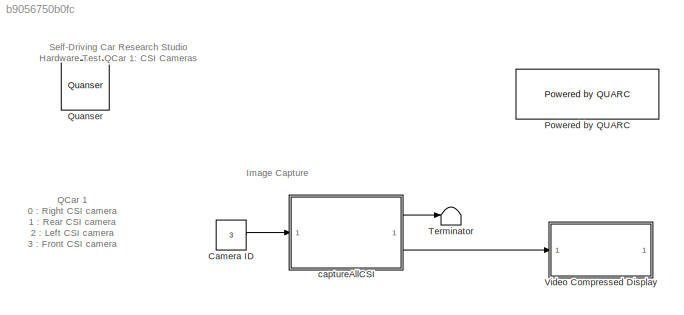
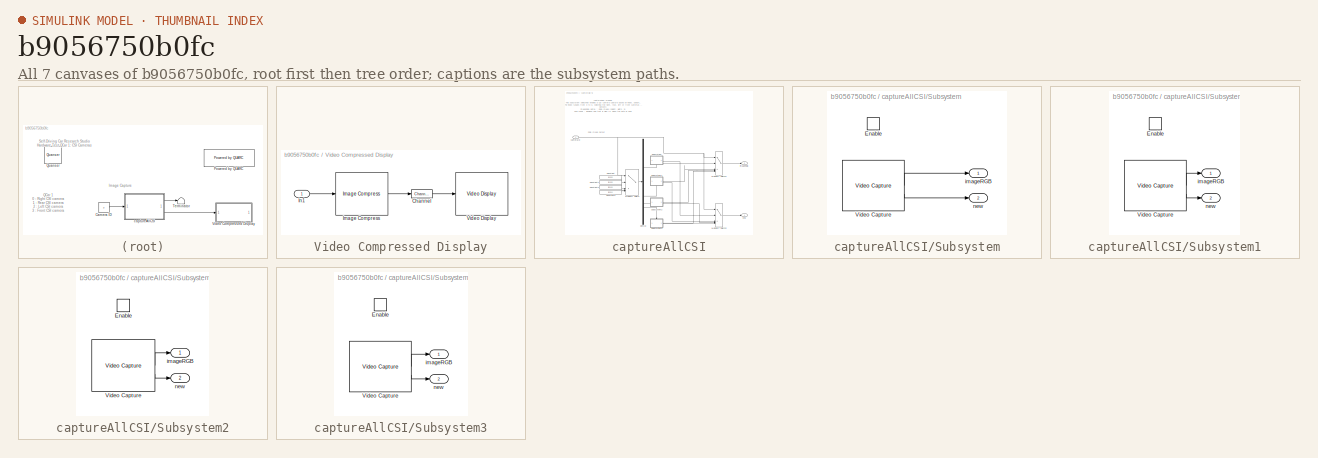
[diagram: thumbnail index - all 7 canvases of the model, root first then tree order]
MODEL slx_b9056750b0fc
KIND model
CONFIG AbsTol = auto
CONFIG EnableMultiTasking = on
CONFIG FixedStep = 1/60
CONFIG MaxStep = auto
CONFIG MinStep = auto
CONFIG RelTol = 1e-3
CONFIG SampleTimeConstraint = Unconstrained
CONFIG SolverName = ode2
CONFIG StartTime = 0.0
CONFIG StopTime = inf
BLOCK [Constant] Camera ID
  Value = 3
BLOCK [Reference] Powered by QUARC  REF=quarc_library/Logos/Powered by QUARC
  SourceBlock = quarc_library/Logos/Powered by QUARC
  SourceProductName = QUARC Targets
  SourceType = Powered by QUARC
BLOCK [Reference] Quanser  REF=quarc_library/Logos/Quanser
  SourceBlock = quarc_library/Logos/Quanser
  SourceProductName = QUARC Targets
  SourceType = Powered by Quanser
BLOCK [Terminator] Terminator
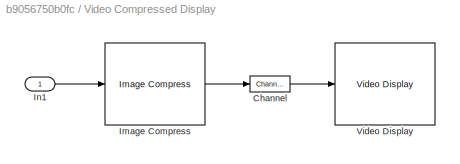
BLOCK [SubSystem] Video Compressed Display
  CopyFcn = set_param(gcbh, 'UserData', gcb);\nset_param(gcbh, 'LinkStatus', 'none');
  LoadFcn = set_param(gcbh, 'UserData', gcb);
  NameChangeFcn = video_display_show([get_param(gcbh, 'UserData'), '/Video Display'], 'rename', [gcb, '/Video Display']);\nvideo_display_show([gcb, '/Video Display'], 'add', gcb);\nset_param(gcbh, 'UserData', gcb);
  OpenFcn = video_display_show([gcb, '/Video Display'], 'show', gcb);
  PreDeleteFcn = video_display_show([gcb, '/Video Display'], 'delete');
  StartFcn = video_display_show([gcb, '/Video Display'], 'add', gcb);
  UndoDeleteFcn = set_param(gcbh, 'UserData', gcb);
BLOCK [Reference] Video Compressed Display/Channel  REF=quarc_library/Signal Routing/Channel
  SourceBlock = quarc_library/Signal Routing/Channel
  SourceProductName = QUARC Targets
  SourceType = Channel
BLOCK [Reference] Video Compressed Display/Image Compress  REF=quarc_library/Image Processing/Generic/Image Compress
  AttributesFormatString = (%<algorithm>)
  SourceBlock = quarc_library/Image Processing/Generic/Image Compress
  SourceProductName = QUARC Targets
  SourceType = Image Compress
BLOCK [Inport] Video Compressed Display/In1
BLOCK [Reference] Video Compressed Display/Video Display  REF=quarc_library/Multimedia/Video Display
  SourceBlock = quarc_library/Multimedia/Video Display
  SourceProductName = QUARC Targets
  SourceType = Video Display
  Tag = hardware_test_qcar_1_csi_cameras/Video Compressed\nDisplay/Video Display
  UserDataPersistent = on
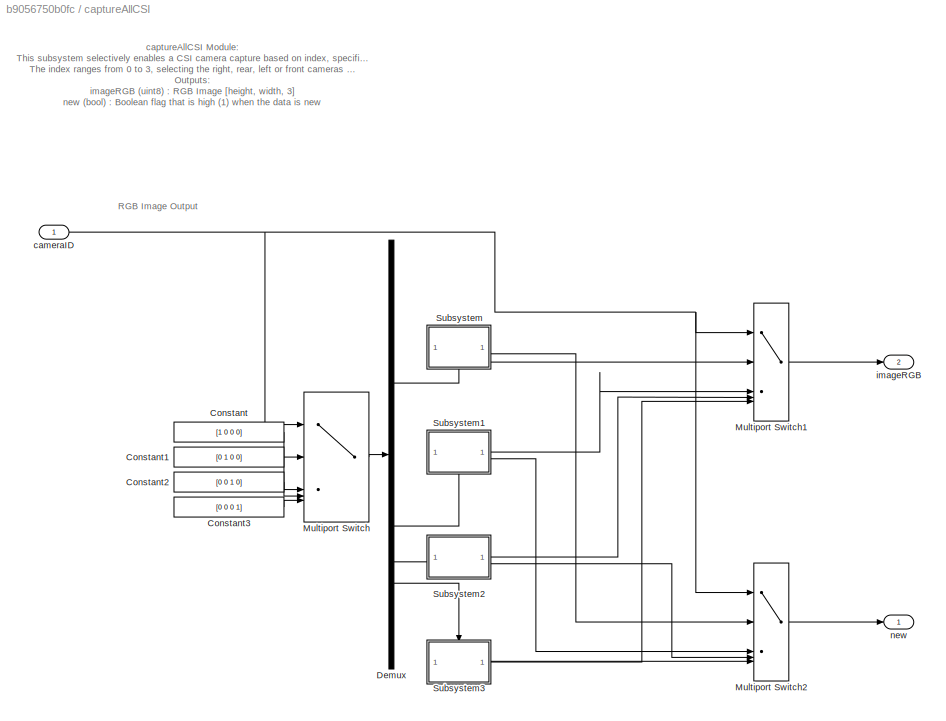
BLOCK [SubSystem] captureAllCSI
BLOCK [Constant] captureAllCSI/Constant
  Value = [1 0 0 0]
BLOCK [Constant] captureAllCSI/Constant1
  Value = [0 1 0 0]
BLOCK [Constant] captureAllCSI/Constant2
  Value = [0 0 1 0]
BLOCK [Constant] captureAllCSI/Constant3
  Value = [0 0 0 1]
BLOCK [Demux] captureAllCSI/Demux
BLOCK [MultiPortSwitch] captureAllCSI/Multiport Switch
  DataPortOrder = Zero-based contiguous
  DiagnosticForDefault = None
  InputSameDT = off
  Inputs = 4
  SaturateOnIntegerOverflow = off
  zeroidx = on
BLOCK [MultiPortSwitch] captureAllCSI/Multiport Switch1
  DataPortOrder = Zero-based contiguous
  DiagnosticForDefault = None
  InputSameDT = off
  Inputs = 4
  SaturateOnIntegerOverflow = off
  zeroidx = on
BLOCK [MultiPortSwitch] captureAllCSI/Multiport Switch2
  DataPortOrder = Zero-based contiguous
  DiagnosticForDefault = None
  InputSameDT = off
  Inputs = 4
  SaturateOnIntegerOverflow = off
  zeroidx = on
BLOCK [SubSystem] captureAllCSI/Subsystem
BLOCK [EnablePort] captureAllCSI/Subsystem/Enable
BLOCK [Reference] captureAllCSI/Subsystem/Video Capture  REF=quarc_library/Multimedia/Video Capture
  SourceBlock = quarc_library/Multimedia/Video Capture
  SourceProductName = QUARC Targets
  SourceType = Video Capture
BLOCK [Outport] captureAllCSI/Subsystem/imageRGB
  VectorParamsAs1DForOutWhenUnconnected = off
BLOCK [Outport] captureAllCSI/Subsystem/new
  Port = 2
  VectorParamsAs1DForOutWhenUnconnected = off
BLOCK [SubSystem] captureAllCSI/Subsystem1
BLOCK [EnablePort] captureAllCSI/Subsystem1/Enable
BLOCK [Reference] captureAllCSI/Subsystem1/Video Capture  REF=quarc_library/Multimedia/Video Capture
  SourceBlock = quarc_library/Multimedia/Video Capture
  SourceProductName = QUARC Targets
  SourceType = Video Capture
BLOCK [Outport] captureAllCSI/Subsystem1/imageRGB
  VectorParamsAs1DForOutWhenUnconnected = off
BLOCK [Outport] captureAllCSI/Subsystem1/new
  Port = 2
  VectorParamsAs1DForOutWhenUnconnected = off
BLOCK [SubSystem] captureAllCSI/Subsystem2
BLOCK [EnablePort] captureAllCSI/Subsystem2/Enable
BLOCK [Reference] captureAllCSI/Subsystem2/Video Capture  REF=quarc_library/Multimedia/Video Capture
  SourceBlock = quarc_library/Multimedia/Video Capture
  SourceProductName = QUARC Targets
  SourceType = Video Capture
BLOCK [Outport] captureAllCSI/Subsystem2/imageRGB
  VectorParamsAs1DForOutWhenUnconnected = off
BLOCK [Outport] captureAllCSI/Subsystem2/new
  Port = 2
  VectorParamsAs1DForOutWhenUnconnected = off
BLOCK [SubSystem] captureAllCSI/Subsystem3
BLOCK [EnablePort] captureAllCSI/Subsystem3/Enable
BLOCK [Reference] captureAllCSI/Subsystem3/Video Capture  REF=quarc_library/Multimedia/Video Capture
  SourceBlock = quarc_library/Multimedia/Video Capture
  SourceProductName = QUARC Targets
  SourceType = Video Capture
BLOCK [Outport] captureAllCSI/Subsystem3/imageRGB
  VectorParamsAs1DForOutWhenUnconnected = off
BLOCK [Outport] captureAllCSI/Subsystem3/new
  Port = 2
  VectorParamsAs1DForOutWhenUnconnected = off
BLOCK [Inport] captureAllCSI/cameraID
BLOCK [Outport] captureAllCSI/imageRGB
  Port = 2
  VectorParamsAs1DForOutWhenUnconnected = off
BLOCK [Outport] captureAllCSI/new
  VectorParamsAs1DForOutWhenUnconnected = off
ANNOTATION (root): Self-Driving Car Research Studio Hardware Test QCar 1: CSI Cameras
ANNOTATION (root): Image Capture
ANNOTATION (root): QCar 1 0 : Right CSI camera 1 : Rear CSI camera 2 : Left CSI camera 3 : Front CSI camera
ANNOTATION captureAllCSI: captureAllCSI Module: This subsystem selectively enables a CSI camera capture based on index, specifically for the QCar. The index ranges from 0 to 3, selecting the right, rear, left or front cameras respectively. The computation time in this case is NOT quadrupled, as only one camera provides the image at a time. Outputs: imageRGB (uint8) : RGB Image [height, width, 3] new (bool) : Boolean flag t...<+36ch>
ANNOTATION captureAllCSI: RGB Image Output
LINE Camera ID:1 -> captureAllCSI:1
LINE captureAllCSI/Constant1:1 -> captureAllCSI/Multiport Switch:3
LINE captureAllCSI/Constant2:1 -> captureAllCSI/Multiport Switch:4
LINE captureAllCSI/Constant3:1 -> captureAllCSI/Multiport Switch:5
LINE captureAllCSI/Constant:1 -> captureAllCSI/Multiport Switch:2
LINE captureAllCSI/Demux:1 -> captureAllCSI/Subsystem:enable
LINE captureAllCSI/Demux:2 -> captureAllCSI/Subsystem1:enable
LINE captureAllCSI/Demux:3 -> captureAllCSI/Subsystem2:enable
LINE captureAllCSI/Demux:4 -> captureAllCSI/Subsystem3:enable
LINE captureAllCSI/Multiport Switch1:1 -> captureAllCSI/imageRGB:1
LINE captureAllCSI/Multiport Switch2:1 -> captureAllCSI/new:1
LINE captureAllCSI/Multiport Switch:1 -> captureAllCSI/Demux:1
LINE captureAllCSI/Subsystem/Video Capture:1 -> captureAllCSI/Subsystem/imageRGB:1
LINE captureAllCSI/Subsystem/Video Capture:2 -> captureAllCSI/Subsystem/new:1
LINE captureAllCSI/Subsystem1/Video Capture:1 -> captureAllCSI/Subsystem1/imageRGB:1
LINE captureAllCSI/Subsystem1/Video Capture:2 -> captureAllCSI/Subsystem1/new:1
LINE captureAllCSI/Subsystem1:1 -> captureAllCSI/Multiport Switch1:3
LINE captureAllCSI/Subsystem1:2 -> captureAllCSI/Multiport Switch2:3
LINE captureAllCSI/Subsystem2/Video Capture:1 -> captureAllCSI/Subsystem2/imageRGB:1
LINE captureAllCSI/Subsystem2/Video Capture:2 -> captureAllCSI/Subsystem2/new:1
LINE captureAllCSI/Subsystem2:1 -> captureAllCSI/Multiport Switch1:4
LINE captureAllCSI/Subsystem2:2 -> captureAllCSI/Multiport Switch2:4
LINE captureAllCSI/Subsystem3/Video Capture:1 -> captureAllCSI/Subsystem3/imageRGB:1
LINE captureAllCSI/Subsystem3/Video Capture:2 -> captureAllCSI/Subsystem3/new:1
LINE captureAllCSI/Subsystem3:1 -> captureAllCSI/Multiport Switch1:5
LINE captureAllCSI/Subsystem3:2 -> captureAllCSI/Multiport Switch2:5
LINE captureAllCSI/Subsystem:1 -> captureAllCSI/Multiport Switch1:2
LINE captureAllCSI/Subsystem:2 -> captureAllCSI/Multiport Switch2:2
NET captureAllCSI/cameraID:1 -> captureAllCSI/Multiport Switch1:1, captureAllCSI/Multiport Switch2:1, captureAllCSI/Multiport Switch:1
LINE captureAllCSI:1 -> Terminator:1
LINE captureAllCSI:2 -> Video Compressed Display:1
note: NET lines group one-source signal fan-out (src -> all destinations, sorted); 1:1 wires keep LINE
